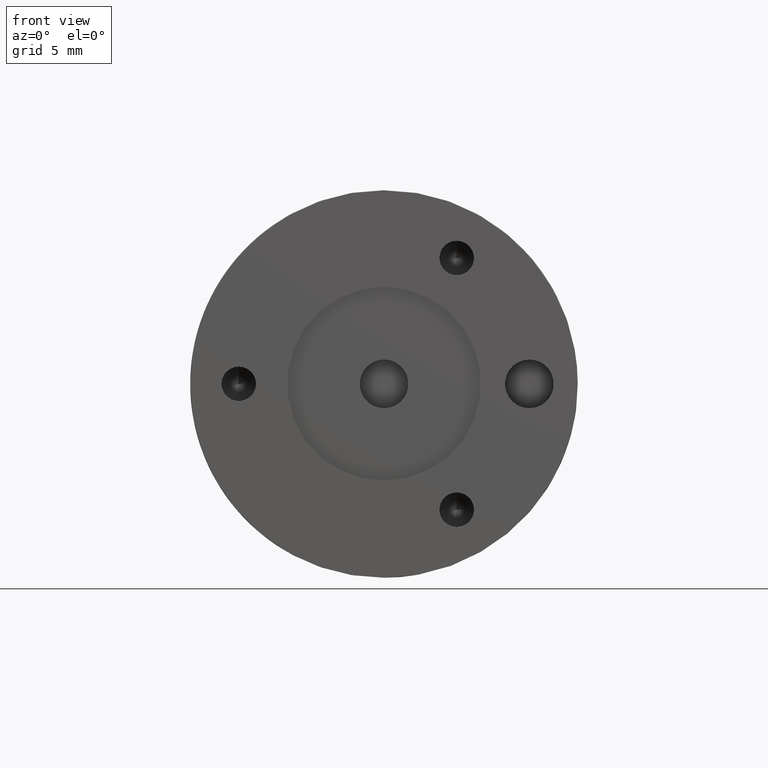
[diagram: clean part render]
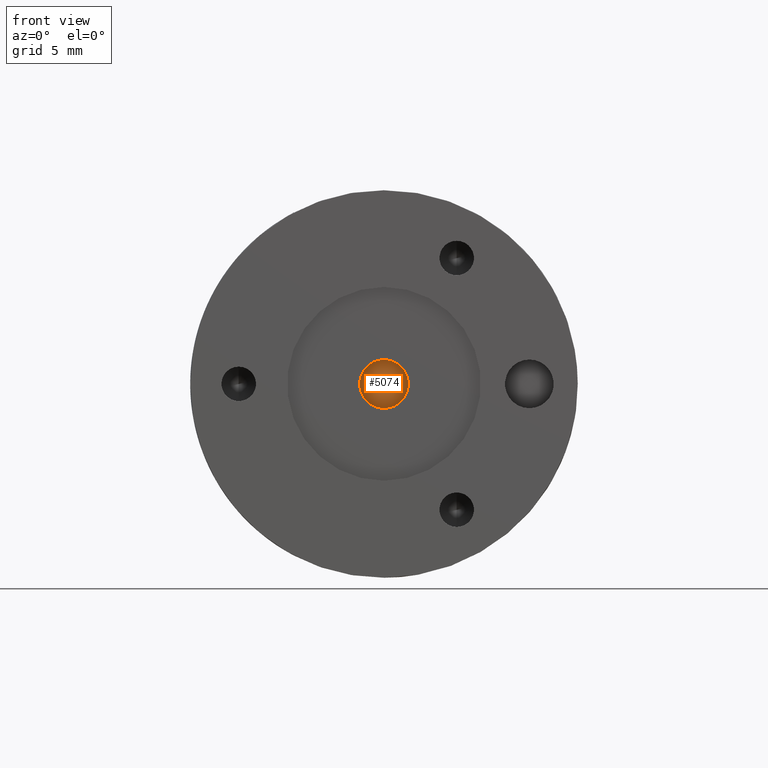
[diagram: same view with one face highlighted and labeled with its STEP entity id]
A machine part, front view. The second image highlights one B-rep face of the part: STEP entity #5074.
In plain terms, the highlighted planar face has unit normal (0, 1, 0).
Its self-contained STEP definition (entity closure, byte-faithful):
#2124 = AXIS2_PLACEMENT_3D ( 'NONE', #2151, #2150, #2149 ) ;
#2132 = CIRCLE ( 'NONE', #2196, 1.593850000000000200 ) ;
#2138 = FACE_OUTER_BOUND ( 'NONE', #5021, .T. ) ;
#2144 = PLANE ( 'NONE',  #2124 ) ;
#2149 = DIRECTION ( 'NONE',  ( 0.0000000000000000000, -0.0000000000000000000, 1.000000000000000000 ) ) ;
#2150 = DIRECTION ( 'NONE',  ( 0.0000000000000000000, 1.000000000000000000, 0.0000000000000000000 ) ) ;
#2151 = CARTESIAN_POINT ( 'NONE',  ( 0.0000000000000000000, 3.174999999999999800, 0.0000000000000000000 ) ) ;
#2187 = DIRECTION ( 'NONE',  ( 0.0000000000000000000, 0.0000000000000000000, 1.000000000000000000 ) ) ;
#2188 = DIRECTION ( 'NONE',  ( 0.0000000000000000000, 1.000000000000000000, 0.0000000000000000000 ) ) ;
#2189 = CARTESIAN_POINT ( 'NONE',  ( 0.0000000000000000000, 3.174999999999999800, 0.0000000000000000000 ) ) ;
#2196 = AXIS2_PLACEMENT_3D ( 'NONE', #2189, #2188, #2187 ) ;
#3798 = CARTESIAN_POINT ( 'NONE',  ( 1.951903300821009100E-016, 3.174999999999999800, 1.593850000000000200 ) ) ;
#3932 = DIRECTION ( 'NONE',  ( 0.0000000000000000000, 0.0000000000000000000, 1.000000000000000000 ) ) ;
#3933 = DIRECTION ( 'NONE',  ( 0.0000000000000000000, 1.000000000000000000, 0.0000000000000000000 ) ) ;
#3934 = CIRCLE ( 'NONE', #3941, 1.593850000000000200 ) ;
#3941 = AXIS2_PLACEMENT_3D ( 'NONE', #3954, #3933, #3932 ) ;
#3954 = CARTESIAN_POINT ( 'NONE',  ( 0.0000000000000000000, 3.174999999999999800, 0.0000000000000000000 ) ) ;
#4159 = CARTESIAN_POINT ( 'NONE',  ( 0.0000000000000000000, 3.174999999999999800, -1.593850000000000200 ) ) ;
#5021 = EDGE_LOOP ( 'NONE', ( #5068, #5085 ) ) ;
#5068 = ORIENTED_EDGE ( 'NONE', *, *, #5410, .F. ) ;
#5074 = ADVANCED_FACE ( 'NONE', ( #2138 ), #2144, .F. ) ;
#5082 = EDGE_CURVE ( 'NONE', #5393, #5488, #2132, .T. ) ;
#5085 = ORIENTED_EDGE ( 'NONE', *, *, #5082, .F. ) ;
#5393 = VERTEX_POINT ( 'NONE', #3798 ) ;
#5410 = EDGE_CURVE ( 'NONE', #5488, #5393, #3934, .T. ) ;
#5488 = VERTEX_POINT ( 'NONE', #4159 ) ;